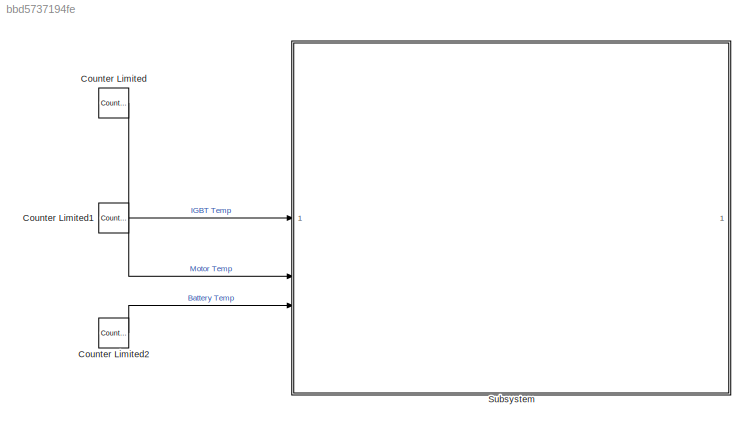
MODEL slx_bbd5737194fe
KIND model
CONFIG AbsTol = auto
CONFIG EnableMultiTasking = off
CONFIG FixedStep = auto
CONFIG MaxStep = auto
CONFIG MinStep = auto
CONFIG RelTol = 1e-3
CONFIG SampleTimeConstraint = Unconstrained
CONFIG SolverName = VariableStepAuto
CONFIG StartTime = 0.0
CONFIG StopTime = 10.0
BLOCK [Reference] Counter Limited  REF=simulink/Sources/Counter
Limited
  SourceBlock = simulink/Sources/Counter\nLimited
  SourceType = Counter Limited
BLOCK [Reference] Counter Limited1  REF=simulink/Sources/Counter
Limited
  SourceBlock = simulink/Sources/Counter\nLimited
  SourceType = Counter Limited
BLOCK [Reference] Counter Limited2  REF=simulink/Sources/Counter
Limited
  SourceBlock = simulink/Sources/Counter\nLimited
  SourceType = Counter Limited
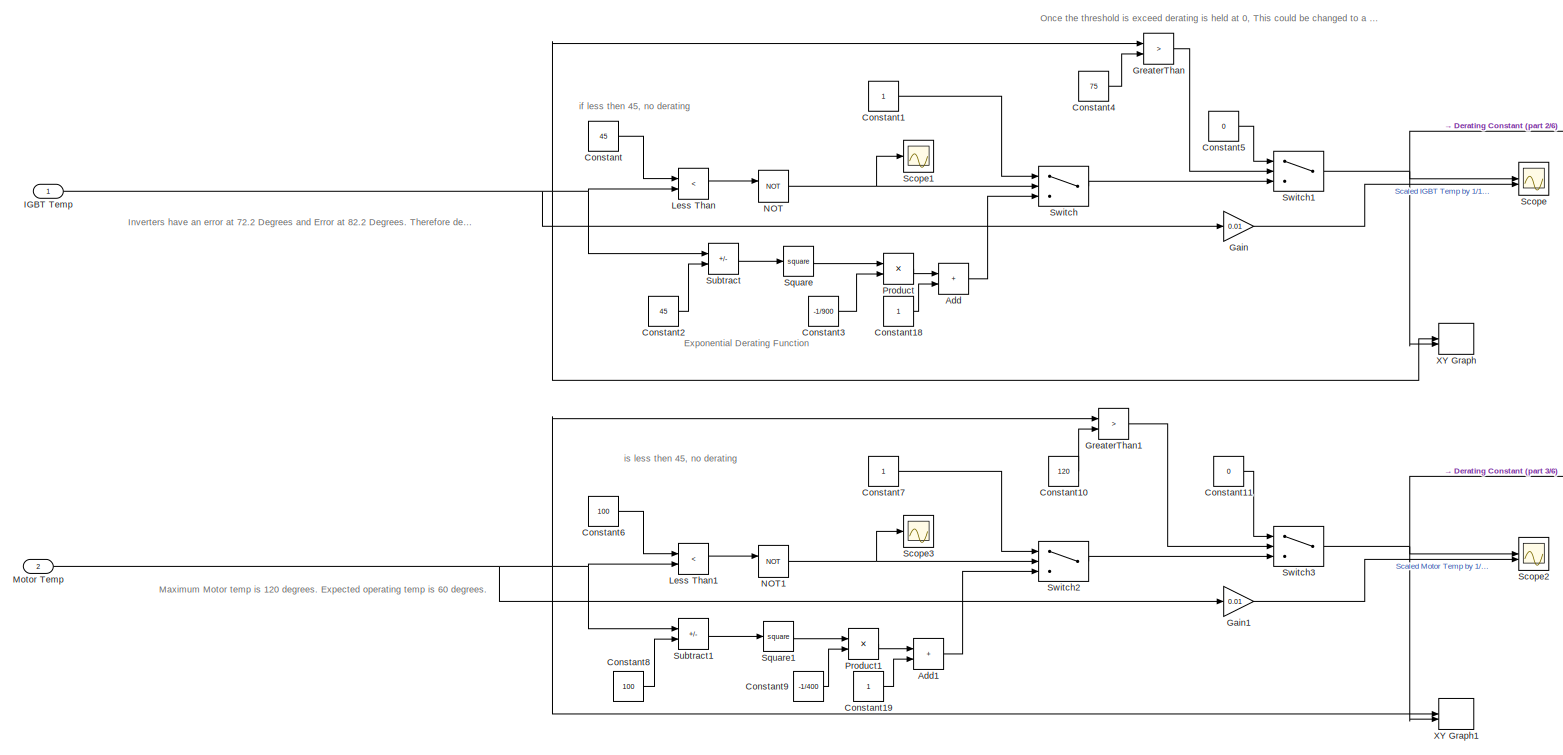
[diagram: Subsystem - part 1/6, full width, middle band]
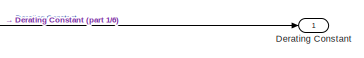
[diagram: Subsystem - part 2/6, top right region]
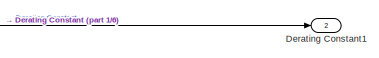
[diagram: Subsystem - part 3/6, middle right region]
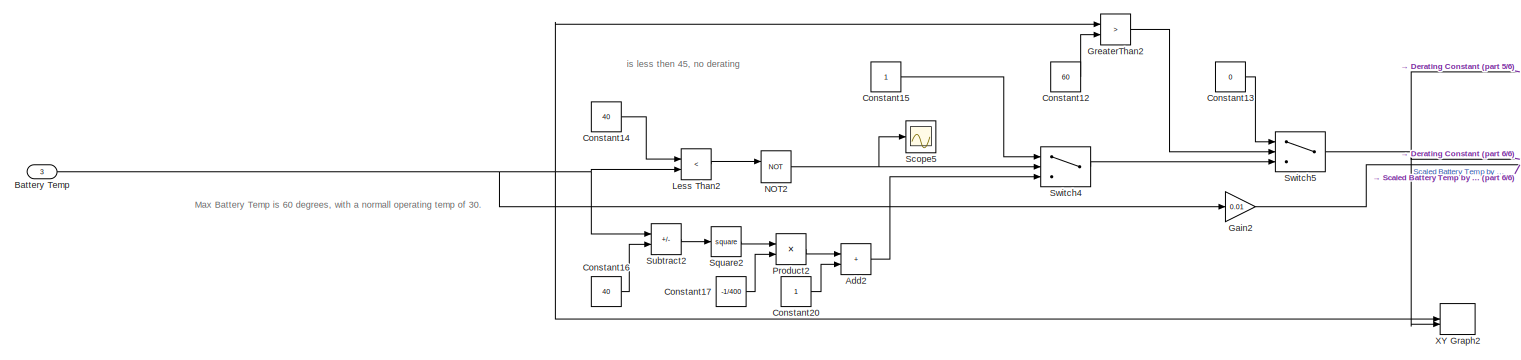
[diagram: Subsystem - part 4/6, full width, bottom band]
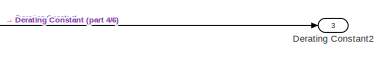
[diagram: Subsystem - part 5/6, bottom right region]
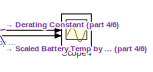
[diagram: Subsystem - part 6/6, bottom right region]
BLOCK [SubSystem] Subsystem
BLOCK [Sum] Subsystem/Add
  IconShape = rectangular
BLOCK [Sum] Subsystem/Add1
  IconShape = rectangular
BLOCK [Sum] Subsystem/Add2
  IconShape = rectangular
BLOCK [Inport] Subsystem/Battery Temp
  Port = 3
BLOCK [Constant] Subsystem/Constant
  Value = 45
BLOCK [Constant] Subsystem/Constant1
BLOCK [Constant] Subsystem/Constant10
  Value = 120
BLOCK [Constant] Subsystem/Constant11
  Value = 0
BLOCK [Constant] Subsystem/Constant12
  Value = 60
BLOCK [Constant] Subsystem/Constant13
  Value = 0
BLOCK [Constant] Subsystem/Constant14
  Value = 40
BLOCK [Constant] Subsystem/Constant15
BLOCK [Constant] Subsystem/Constant16
  Value = 40
BLOCK [Constant] Subsystem/Constant17
  Value = -1/400
BLOCK [Constant] Subsystem/Constant18
BLOCK [Constant] Subsystem/Constant19
BLOCK [Constant] Subsystem/Constant2
  Value = 45
BLOCK [Constant] Subsystem/Constant20
BLOCK [Constant] Subsystem/Constant3
  Value = -1/900
BLOCK [Constant] Subsystem/Constant4
  Value = 75
BLOCK [Constant] Subsystem/Constant5
  Value = 0
BLOCK [Constant] Subsystem/Constant6
  Value = 100
BLOCK [Constant] Subsystem/Constant7
BLOCK [Constant] Subsystem/Constant8
  Value = 100
BLOCK [Constant] Subsystem/Constant9
  Value = -1/400
BLOCK [Outport] Subsystem/Derating Constant
BLOCK [Outport] Subsystem/Derating Constant1
  Port = 2
BLOCK [Outport] Subsystem/Derating Constant2
  Port = 3
BLOCK [Gain] Subsystem/Gain
  Gain = 0.01
BLOCK [Gain] Subsystem/Gain1
  Gain = 0.01
BLOCK [Gain] Subsystem/Gain2
  Gain = 0.01
BLOCK [RelationalOperator] Subsystem/GreaterThan
  InputSameDT = off
  Operator = >
  OutDataTypeStr = boolean
  RndMeth = Simplest
BLOCK [RelationalOperator] Subsystem/GreaterThan1
  InputSameDT = off
  Operator = >
  OutDataTypeStr = boolean
  RndMeth = Simplest
BLOCK [RelationalOperator] Subsystem/GreaterThan2
  InputSameDT = off
  Operator = >
  OutDataTypeStr = boolean
  RndMeth = Simplest
BLOCK [Inport] Subsystem/IGBT Temp
BLOCK [RelationalOperator] Subsystem/Less Than
  InputSameDT = off
  Operator = <
  OutDataTypeStr = boolean
  RndMeth = Simplest
BLOCK [RelationalOperator] Subsystem/Less Than1
  InputSameDT = off
  Operator = <
  OutDataTypeStr = boolean
  RndMeth = Simplest
BLOCK [RelationalOperator] Subsystem/Less Than2
  InputSameDT = off
  Operator = <
  OutDataTypeStr = boolean
  RndMeth = Simplest
BLOCK [Inport] Subsystem/Motor Temp
  Port = 2
BLOCK [Logic] Subsystem/NOT
  AllPortsSameDT = off
  IconShape = distinctive
  Operator = NOT
  OutDataTypeStr = boolean
BLOCK [Logic] Subsystem/NOT1
  AllPortsSameDT = off
  IconShape = distinctive
  Operator = NOT
  OutDataTypeStr = boolean
BLOCK [Logic] Subsystem/NOT2
  AllPortsSameDT = off
  IconShape = distinctive
  Operator = NOT
  OutDataTypeStr = boolean
BLOCK [Product] Subsystem/Product
BLOCK [Product] Subsystem/Product1
BLOCK [Product] Subsystem/Product2
BLOCK [Scope] Subsystem/Scope
  Floating = off
  NumInputPorts = 2
  ScopeSpecificationString = Simulink.scopes.TimeScopeBlockCfg('CurrentConfiguration', extmgr.ConfigurationSet(extmgr.Configuration('Core','General UI',true,'FigureColor',[1 1 1]),extmgr.Configuration('Core','Source UI',true),extmgr.Configuration('Sources','WiredSimulink',true),extmgr.Configuration('Visuals','Time Domain',true,'SerializedDisplays',{struct('MinYLimReal','-0.12512','MaxYLimReal','1.1261','YLabelReal','','MinYLi...<+1544ch>
BLOCK [Scope] Subsystem/Scope1
  Floating = off
  NumInputPorts = 1
  ScopeSpecificationString = Simulink.scopes.TimeScopeBlockCfg('CurrentConfiguration', extmgr.ConfigurationSet(extmgr.Configuration('Core','General UI',true),extmgr.Configuration('Core','Source UI',true),extmgr.Configuration('Sources','WiredSimulink',true,'DataLoggingVariableName','ScopeData1'),extmgr.Configuration('Visuals','Time Domain',true,'SerializedDisplays',{struct('MinYLimReal','-0.125','MaxYLimReal','1.125','YLabelRe...<+1439ch>
BLOCK [Scope] Subsystem/Scope2
  Floating = off
  NumInputPorts = 2
  ScopeSpecificationString = Simulink.scopes.TimeScopeBlockCfg('CurrentConfiguration', extmgr.ConfigurationSet(extmgr.Configuration('Core','General UI',true,'FigureColor',[1 1 1]),extmgr.Configuration('Core','Source UI',true),extmgr.Configuration('Sources','WiredSimulink',true,'DataLoggingVariableName','ScopeData2'),extmgr.Configuration('Visuals','Time Domain',true,'SerializedDisplays',{struct('MinYLimReal','-0.17767','MaxYLi...<+1750ch>
BLOCK [Scope] Subsystem/Scope3
  Floating = off
  NumInputPorts = 1
  ScopeSpecificationString = Simulink.scopes.TimeScopeBlockCfg('CurrentConfiguration', extmgr.ConfigurationSet(extmgr.Configuration('Core','General UI',true),extmgr.Configuration('Core','Source UI',true),extmgr.Configuration('Sources','WiredSimulink',true,'DataLoggingVariableName','ScopeData3'),extmgr.Configuration('Visuals','Time Domain',true,'SerializedDisplays',{struct('MinYLimReal','-0.125','MaxYLimReal','1.125','YLabelRe...<+1439ch>
BLOCK [Scope] Subsystem/Scope4
  Floating = off
  NumInputPorts = 2
  ScopeSpecificationString = Simulink.scopes.TimeScopeBlockCfg('CurrentConfiguration', extmgr.ConfigurationSet(extmgr.Configuration('Core','General UI',true,'FigureColor',[1 1 1]),extmgr.Configuration('Core','Source UI',true),extmgr.Configuration('Sources','WiredSimulink',true,'DataLoggingVariableName','ScopeData4'),extmgr.Configuration('Visuals','Time Domain',true,'SerializedDisplays',{struct('MinYLimReal','-0.12512','MaxYLi...<+1744ch>
BLOCK [Scope] Subsystem/Scope5
  Floating = off
  NumInputPorts = 1
  ScopeSpecificationString = Simulink.scopes.TimeScopeBlockCfg('CurrentConfiguration', extmgr.ConfigurationSet(extmgr.Configuration('Core','General UI',true),extmgr.Configuration('Core','Source UI',true),extmgr.Configuration('Sources','WiredSimulink',true,'DataLoggingVariableName','ScopeData5'),extmgr.Configuration('Visuals','Time Domain',true,'SerializedDisplays',{struct('MinYLimReal','-0.125','MaxYLimReal','1.125','YLabelRe...<+1439ch>
BLOCK [Math] Subsystem/Square
  Operator = square
BLOCK [Math] Subsystem/Square1
  Operator = square
BLOCK [Math] Subsystem/Square2
  Operator = square
BLOCK [Sum] Subsystem/Subtract
  IconShape = rectangular
  Inputs = +-
BLOCK [Sum] Subsystem/Subtract1
  IconShape = rectangular
  Inputs = +-
BLOCK [Sum] Subsystem/Subtract2
  IconShape = rectangular
  Inputs = +-
BLOCK [Switch] Subsystem/Switch
  Criteria = u2 > Threshold
  InputSameDT = off
  SaturateOnIntegerOverflow = off
BLOCK [Switch] Subsystem/Switch1
  Criteria = u2 > Threshold
  InputSameDT = off
  SaturateOnIntegerOverflow = off
BLOCK [Switch] Subsystem/Switch2
  Criteria = u2 > Threshold
  InputSameDT = off
  SaturateOnIntegerOverflow = off
BLOCK [Switch] Subsystem/Switch3
  Criteria = u2 > Threshold
  InputSameDT = off
  SaturateOnIntegerOverflow = off
BLOCK [Switch] Subsystem/Switch4
  Criteria = u2 > Threshold
  InputSameDT = off
  SaturateOnIntegerOverflow = off
BLOCK [Switch] Subsystem/Switch5
  Criteria = u2 > Threshold
  InputSameDT = off
  SaturateOnIntegerOverflow = off
BLOCK [Record] Subsystem/XY Graph
  CompatibilityTag = XY
  FileSettingsInternal = {"entries":[{"content":{"excelSettings":{"content":{},"type":"Streamout.ExcelSettings"}},"type":"Streamout.FileSettingStorage","uuid":""}],"packageUris":["http:\/\/schema.mathworks.com\/mf0\/streamout_blocks\/R2020a"],"version":"1.0"}  <repeated x3 — deduplicated; at blocks: XY Graph, XY Graph1, XY Graph2>
  Layout = [1 1]
  SignalsInternal = {"entries":[{"content":{"signals":[{"content":{"blockPath":[],"dimensions":[1],"domain":"","lineColor":"#a2142f","plots":[ 1 ],"port":1,"signalID":1,"signalName":"IGBT Temp"},"type":"RecordBlkView.Signal","uuid":""},{"content":{"blockPath":[],"dimensions":[1],"domain":"","lineColor":"#139fff","plots":[ 1 ],"port":2,"signalID":2,"signalName":"Derating Constant"},"type":"RecordBlkView.Signal","uuid"...<+150ch>
  VisualizationBindings = {"xyplotplugin":{"info":[{"series":[{"bindingParametersList":[{"parameter":"X-Axis","signalID":1,"signalName":"IGBT Temp"},{"parameter":"Y-Axis","signalID":2,"signalName":"Derating Constant"}],"seriesID":0}],"subplotID":1}]}}
BLOCK [Record] Subsystem/XY Graph1
  CompatibilityTag = XY
  Layout = [1 1]
  SignalsInternal = {"entries":[{"content":{"signals":[{"content":{"blockPath":[],"dimensions":[1],"domain":"","lineColor":"#a2142f","plots":[ 1 ],"port":1,"signalID":1,"signalName":"Motor Temp"},"type":"RecordBlkView.Signal","uuid":""},{"content":{"blockPath":[],"dimensions":[1],"domain":"","lineColor":"#139fff","plots":[ 1 ],"port":2,"signalID":2,"signalName":"Derating Constant"},"type":"RecordBlkView.Signal","uuid...<+151ch>
  VisualizationBindings = {"xyplotplugin":{"info":[{"series":[{"bindingParametersList":[{"parameter":"X-Axis","signalID":1,"signalName":"Motor Temp"},{"parameter":"Y-Axis","signalID":2,"signalName":"Derating Constant"}],"seriesID":0}],"subplotID":1}]}}
BLOCK [Record] Subsystem/XY Graph2
  CompatibilityTag = XY
  Layout = [1 1]
  SignalsInternal = {"entries":[{"content":{"signals":[{"content":{"blockPath":[],"dimensions":[1],"domain":"","lineColor":"#a2142f","plots":[ 1 ],"port":1,"signalID":1,"signalName":"Battery Temp"},"type":"RecordBlkView.Signal","uuid":""},{"content":{"blockPath":[],"dimensions":[1],"domain":"","lineColor":"#139fff","plots":[ 1 ],"port":2,"signalID":2,"signalName":"Derating Constant"},"type":"RecordBlkView.Signal","uu...<+153ch>
  VisualizationBindings = {"xyplotplugin":{"info":[{"series":[{"bindingParametersList":[{"parameter":"X-Axis","signalID":1,"signalName":"Battery Temp"},{"parameter":"Y-Axis","signalID":2,"signalName":"Derating Constant"}],"seriesID":0}],"subplotID":1}]}}
ANNOTATION Subsystem: Exponential Derating Function
ANNOTATION Subsystem: Inverters have an error at 72.2 Degrees and Error at 82.2 Degrees. Therefore derating function will approach zero at 75 degrees. Expected operating Temprature is 40 degrees.
ANNOTATION Subsystem: Once the threshold is exceed derating is held at 0, This could be changed to a small value if it was deemed appropriate to allow the vehicle to continue slowly.
ANNOTATION Subsystem: if less then 45, no derating
ANNOTATION Subsystem: Max Battery Temp is 60 degrees, with a normall operating temp of 30.
ANNOTATION Subsystem: Maximum Motor temp is 120 degrees. Expected operating temp is 60 degrees.
ANNOTATION Subsystem: is less then 45, no derating
LINE Counter Limited1:1 -> Subsystem:2
LINE Counter Limited2:1 -> Subsystem:3
LINE Counter Limited:1 -> Subsystem:1
LINE Subsystem/Add1:1 -> Subsystem/Switch2:3
LINE Subsystem/Add2:1 -> Subsystem/Switch4:3
LINE Subsystem/Add:1 -> Subsystem/Switch:3
NET Subsystem/Battery Temp:1 -> Subsystem/Gain2:1, Subsystem/GreaterThan2:1, Subsystem/Less Than2:2, Subsystem/Subtract2:1, Subsystem/XY Graph2:1
LINE Subsystem/Constant10:1 -> Subsystem/GreaterThan1:2
LINE Subsystem/Constant11:1 -> Subsystem/Switch3:1
LINE Subsystem/Constant12:1 -> Subsystem/GreaterThan2:2
LINE Subsystem/Constant13:1 -> Subsystem/Switch5:1
LINE Subsystem/Constant14:1 -> Subsystem/Less Than2:1
LINE Subsystem/Constant15:1 -> Subsystem/Switch4:1
LINE Subsystem/Constant16:1 -> Subsystem/Subtract2:2
LINE Subsystem/Constant17:1 -> Subsystem/Product2:2
LINE Subsystem/Constant18:1 -> Subsystem/Add:2
LINE Subsystem/Constant19:1 -> Subsystem/Add1:2
LINE Subsystem/Constant1:1 -> Subsystem/Switch:1
LINE Subsystem/Constant20:1 -> Subsystem/Add2:2
LINE Subsystem/Constant2:1 -> Subsystem/Subtract:2
LINE Subsystem/Constant3:1 -> Subsystem/Product:2
LINE Subsystem/Constant4:1 -> Subsystem/GreaterThan:2
LINE Subsystem/Constant5:1 -> Subsystem/Switch1:1
LINE Subsystem/Constant6:1 -> Subsystem/Less Than1:1
LINE Subsystem/Constant7:1 -> Subsystem/Switch2:1
LINE Subsystem/Constant8:1 -> Subsystem/Subtract1:2
LINE Subsystem/Constant9:1 -> Subsystem/Product1:2
LINE Subsystem/Constant:1 -> Subsystem/Less Than:1
LINE Subsystem/Gain1:1 -> Subsystem/Scope2:2
LINE Subsystem/Gain2:1 -> Subsystem/Scope4:2
LINE Subsystem/Gain:1 -> Subsystem/Scope:2
LINE Subsystem/GreaterThan1:1 -> Subsystem/Switch3:2
LINE Subsystem/GreaterThan2:1 -> Subsystem/Switch5:2
LINE Subsystem/GreaterThan:1 -> Subsystem/Switch1:2
NET Subsystem/IGBT Temp:1 -> Subsystem/Gain:1, Subsystem/GreaterThan:1, Subsystem/Less Than:2, Subsystem/Subtract:1, Subsystem/XY Graph:1
LINE Subsystem/Less Than1:1 -> Subsystem/NOT1:1
LINE Subsystem/Less Than2:1 -> Subsystem/NOT2:1
LINE Subsystem/Less Than:1 -> Subsystem/NOT:1
NET Subsystem/Motor Temp:1 -> Subsystem/Gain1:1, Subsystem/GreaterThan1:1, Subsystem/Less Than1:2, Subsystem/Subtract1:1, Subsystem/XY Graph1:1
NET Subsystem/NOT1:1 -> Subsystem/Scope3:1, Subsystem/Switch2:2
NET Subsystem/NOT2:1 -> Subsystem/Scope5:1, Subsystem/Switch4:2
NET Subsystem/NOT:1 -> Subsystem/Scope1:1, Subsystem/Switch:2
LINE Subsystem/Product1:1 -> Subsystem/Add1:1
LINE Subsystem/Product2:1 -> Subsystem/Add2:1
LINE Subsystem/Product:1 -> Subsystem/Add:1
LINE Subsystem/Square1:1 -> Subsystem/Product1:1
LINE Subsystem/Square2:1 -> Subsystem/Product2:1
LINE Subsystem/Square:1 -> Subsystem/Product:1
LINE Subsystem/Subtract1:1 -> Subsystem/Square1:1
LINE Subsystem/Subtract2:1 -> Subsystem/Square2:1
LINE Subsystem/Subtract:1 -> Subsystem/Square:1
NET Subsystem/Switch1:1 -> Subsystem/Derating Constant:1, Subsystem/Scope:1, Subsystem/XY Graph:2
LINE Subsystem/Switch2:1 -> Subsystem/Switch3:3
NET Subsystem/Switch3:1 -> Subsystem/Derating Constant1:1, Subsystem/Scope2:1, Subsystem/XY Graph1:2
LINE Subsystem/Switch4:1 -> Subsystem/Switch5:3
NET Subsystem/Switch5:1 -> Subsystem/Derating Constant2:1, Subsystem/Scope4:1, Subsystem/XY Graph2:2
LINE Subsystem/Switch:1 -> Subsystem/Switch1:3
note: NET lines group one-source signal fan-out (src -> all destinations, sorted); 1:1 wires keep LINE
